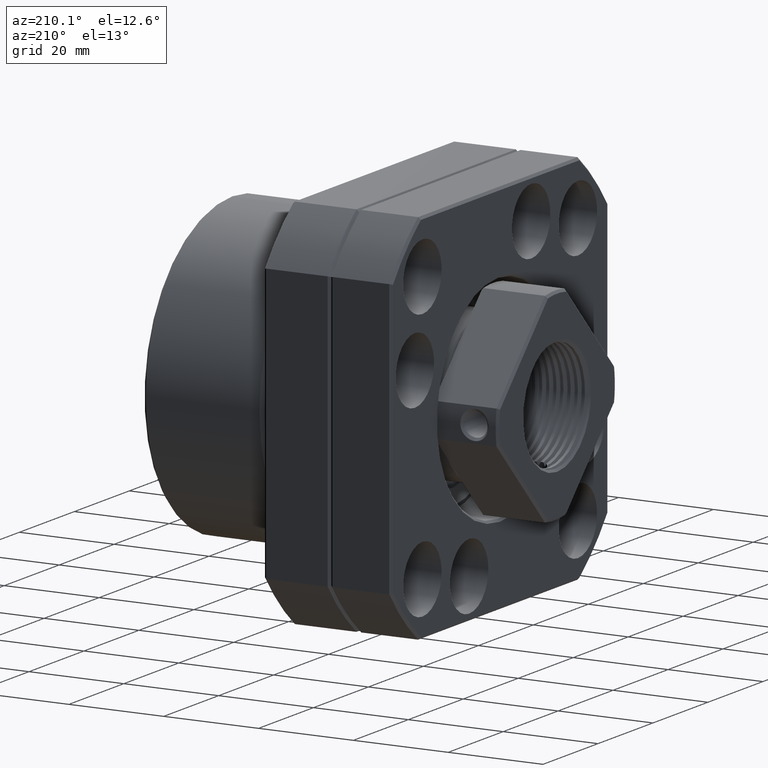
[diagram: clean part render]
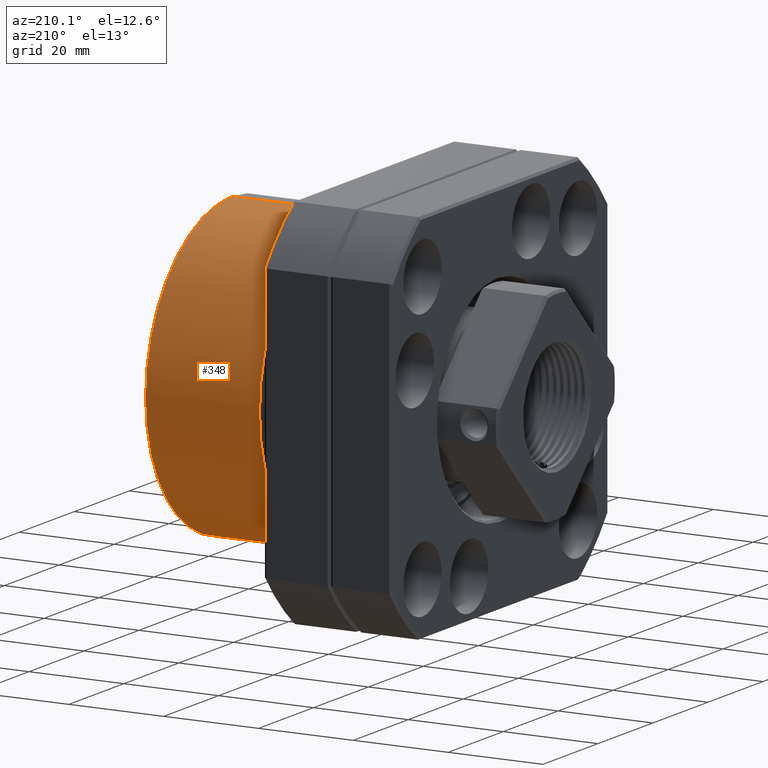
[diagram: same view with one face highlighted and labeled with its STEP entity id]
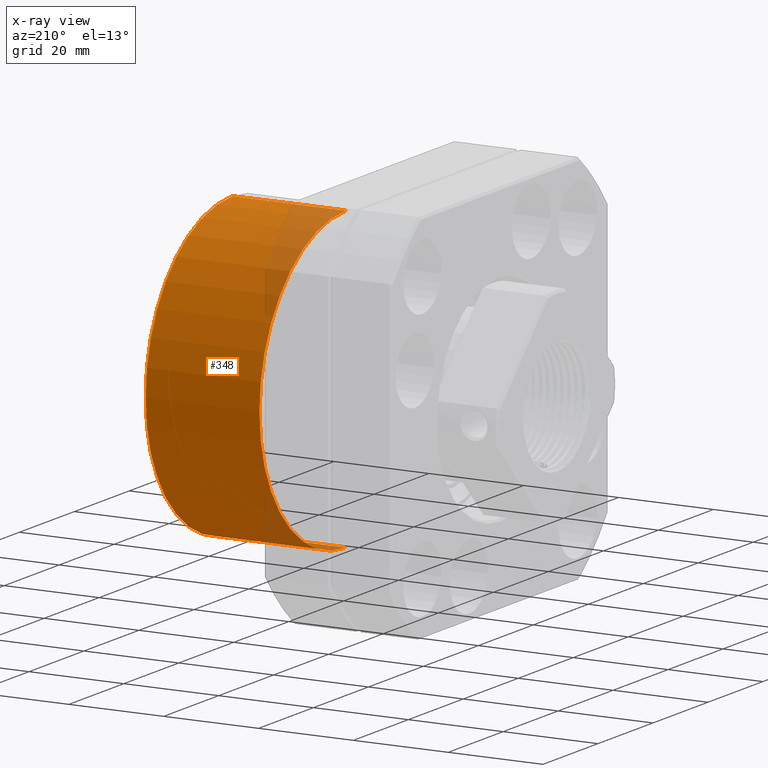
[diagram: x-ray of the same camera — body ghosted, the highlighted face saturated]
A machine part, auxiliary view. The second image highlights one B-rep face of the part: STEP entity #348.
The next image is the same camera in x-ray: the body ghosted, the highlighted face saturated — about 11% of this face is hidden behind the body in this view.
In plain terms, the highlighted cylindrical surface (partial cylindrical patch) has radius 31.5 mm, axis along (-1, -0, -0).
Its self-contained STEP definition (entity closure, byte-faithful):
#106 = VERTEX_POINT ( 'NONE', #16683 ) ;
#136 = EDGE_CURVE ( 'NONE', #15215, #106, #16748, .T. ) ;
#160 = ORIENTED_EDGE ( 'NONE', *, *, #136, .F. ) ;
#165 = EDGE_CURVE ( 'NONE', #15133, #341, #16823, .T. ) ;
#195 = ORIENTED_EDGE ( 'NONE', *, *, #165, .T. ) ;
#210 = ORIENTED_EDGE ( 'NONE', *, *, #353, .F. ) ;
#341 = VERTEX_POINT ( 'NONE', #17042 ) ;
#343 = ORIENTED_EDGE ( 'NONE', *, *, #15214, .T. ) ;
#348 = ADVANCED_FACE ( 'NONE', ( #17035 ), #17032, .T. ) ;
#350 = EDGE_LOOP ( 'NONE', ( #343, #195, #210, #160 ) ) ;
#353 = EDGE_CURVE ( 'NONE', #106, #341, #17028, .T. ) ;
#10109 = CARTESIAN_POINT ( 'NONE',  ( 43.50000000000000000, 3.857510014540488400E-015, -31.50000000000000000 ) ) ;
#10846 = CARTESIAN_POINT ( 'NONE',  ( 43.50000000000000000, 0.0000000000000000000, 31.50000000000000000 ) ) ;
#10847 = DIRECTION ( 'NONE',  ( 0.0000000000000000000, 0.0000000000000000000, 1.000000000000000000 ) ) ;
#10848 = DIRECTION ( 'NONE',  ( -1.000000000000000000, -0.0000000000000000000, -0.0000000000000000000 ) ) ;
#10849 = CARTESIAN_POINT ( 'NONE',  ( 43.50000000000000000, 0.0000000000000000000, 0.0000000000000000000 ) ) ;
#10850 = AXIS2_PLACEMENT_3D ( 'NONE', #10849, #10848, #10847 ) ;
#10856 = CIRCLE ( 'NONE', #10850, 31.50000000000000000 ) ;
#15133 = VERTEX_POINT ( 'NONE', #10109 ) ;
#15214 = EDGE_CURVE ( 'NONE', #15215, #15133, #10856, .T. ) ;
#15215 = VERTEX_POINT ( 'NONE', #10846 ) ;
#16683 = CARTESIAN_POINT ( 'NONE',  ( 19.50000000000000400, 0.0000000000000000000, 31.50000000000000000 ) ) ;
#16745 = DIRECTION ( 'NONE',  ( -1.000000000000000000, -0.0000000000000000000, -0.0000000000000000000 ) ) ;
#16746 = VECTOR ( 'NONE', #16745, 1000.000000000000000 ) ;
#16747 = CARTESIAN_POINT ( 'NONE',  ( -94.46891865289678900, 0.0000000000000000000, 31.50000000000000000 ) ) ;
#16748 = LINE ( 'NONE', #16747, #16746 ) ;
#16820 = DIRECTION ( 'NONE',  ( -1.000000000000000000, -0.0000000000000000000, -0.0000000000000000000 ) ) ;
#16821 = VECTOR ( 'NONE', #16820, 1000.000000000000000 ) ;
#16822 = CARTESIAN_POINT ( 'NONE',  ( -94.46891865289678900, 3.857510014540488400E-015, -31.50000000000000000 ) ) ;
#16823 = LINE ( 'NONE', #16822, #16821 ) ;
#17024 = DIRECTION ( 'NONE',  ( 0.0000000000000000000, 0.0000000000000000000, 1.000000000000000000 ) ) ;
#17025 = DIRECTION ( 'NONE',  ( -1.000000000000000000, -0.0000000000000000000, -0.0000000000000000000 ) ) ;
#17026 = CARTESIAN_POINT ( 'NONE',  ( 19.50000000000000400, 0.0000000000000000000, 0.0000000000000000000 ) ) ;
#17027 = AXIS2_PLACEMENT_3D ( 'NONE', #17026, #17025, #17024 ) ;
#17028 = CIRCLE ( 'NONE', #17027, 31.50000000000000000 ) ;
#17029 = DIRECTION ( 'NONE',  ( 0.0000000000000000000, 0.0000000000000000000, 1.000000000000000000 ) ) ;
#17030 = DIRECTION ( 'NONE',  ( -1.000000000000000000, -0.0000000000000000000, -0.0000000000000000000 ) ) ;
#17031 = AXIS2_PLACEMENT_3D ( 'NONE', #17034, #17030, #17029 ) ;
#17032 = CYLINDRICAL_SURFACE ( 'NONE', #17031, 31.50000000000000000 ) ;
#17034 = CARTESIAN_POINT ( 'NONE',  ( -94.46891865289678900, 0.0000000000000000000, 0.0000000000000000000 ) ) ;
#17035 = FACE_OUTER_BOUND ( 'NONE', #350, .T. ) ;
#17042 = CARTESIAN_POINT ( 'NONE',  ( 19.50000000000000400, 3.857510014540488400E-015, -31.50000000000000000 ) ) ;